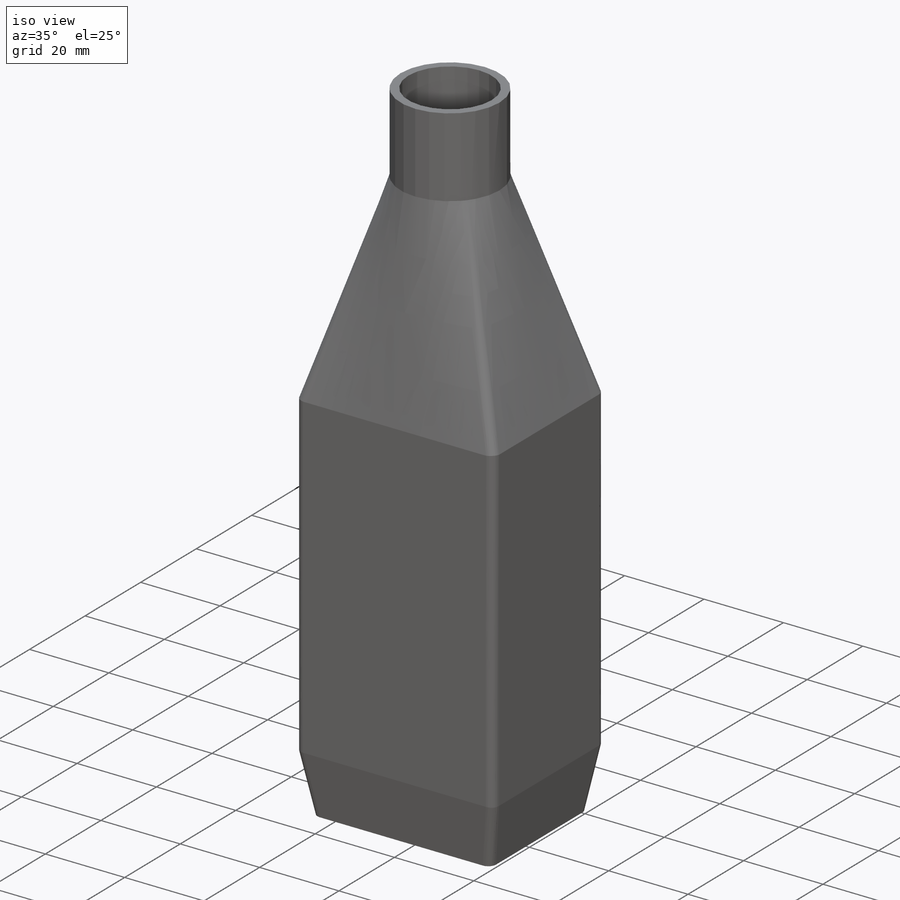
[diagram: iso view]
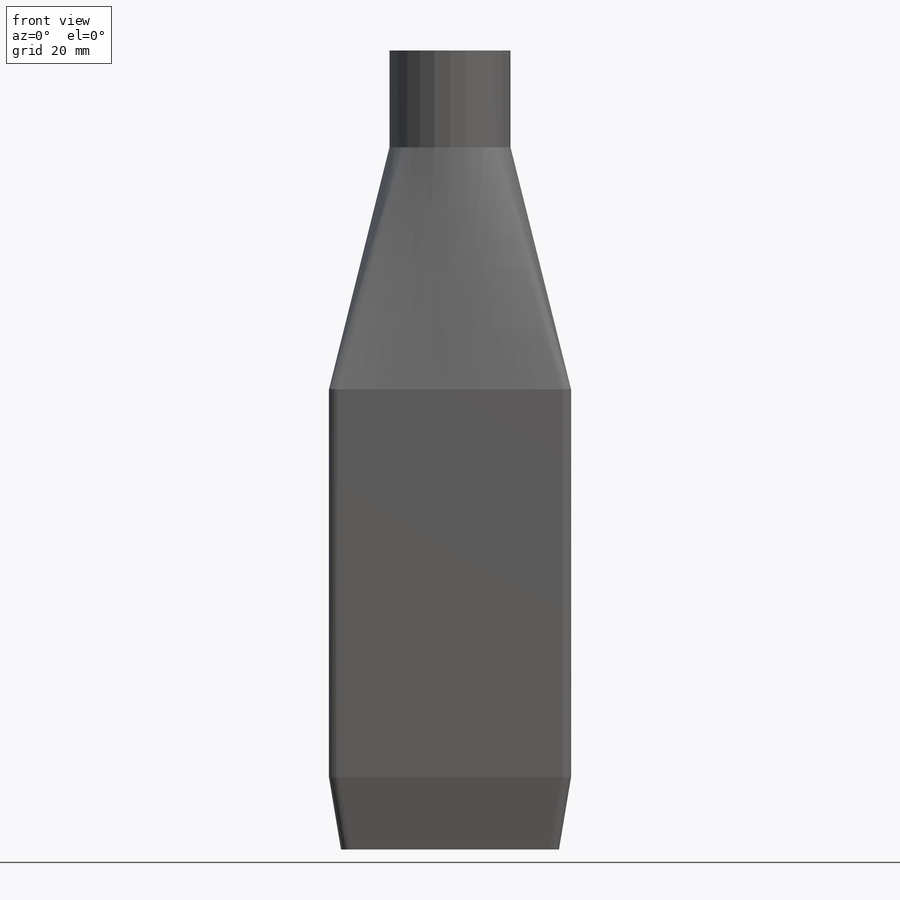
[diagram: front view]
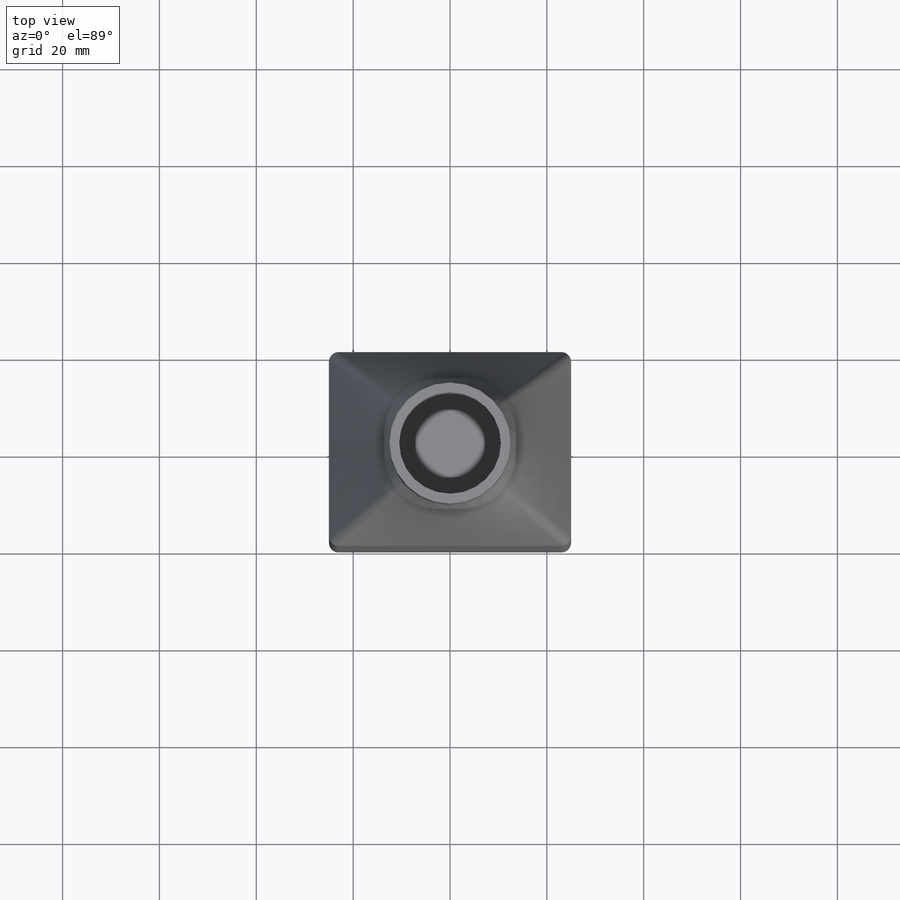
[diagram: top view]
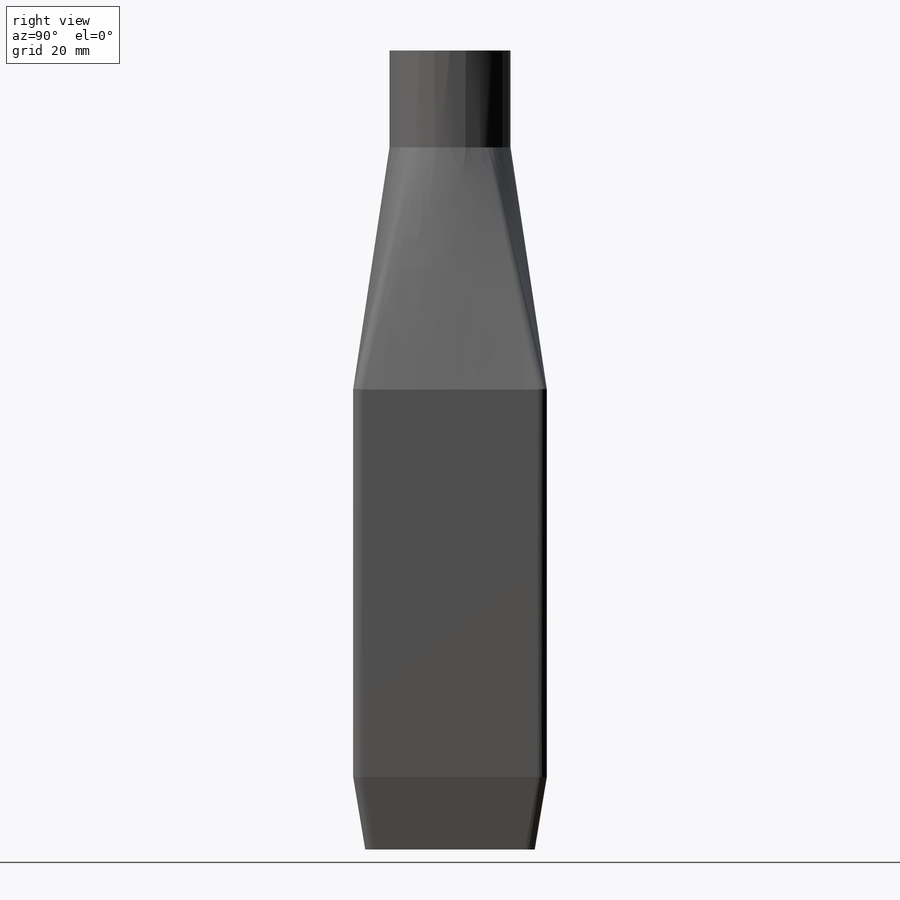
[diagram: right view]
SOLIDWORKS PART (.sldprt)
format: sldprt  version: not decoded by parser v0  size: 287,232 bytes
history: native  units: mm
features: sketch x5, plane x2, extrude x2, material x1, shell x1, fillet x1 (+12 scaffold rows collapsed)
feature tree (24):
  scaffold x12  (default folders/planes/origin — collapsed)
  material  "Material <not specified>"
  sketch  "Sketch1"  dims[c1.D1=~55.50285mm c1.D2=~68.697868mm c2.D1=50.0mm c2.D2=40.0mm]
  plane  "Plane1"  Offset=50mm
  sketch  "Sketch2"  dims[D1=25.0mm]
  sketch  "Sketch3"  dims[D1=0.0mm]
  extrude  "Boss-Extrude1"  Depth=20mm
  sketch  "Sketch4"  dims[D1=0.0mm]
  extrude  "Boss-Extrude2"  Depth=80mm
  shell  "Shell2"  Thickness=2mm
  plane  "Plane2"  Offset=15mm
  sketch  "Sketch6"  dims[c1.D1=~37.132623mm c1.D2=~41.016789mm c2.D1=45.0mm c2.D2=35.0mm]
  fillet  "Fillet2"  Radius=2mm
decode coverage: 9 of 9 modeling features carry decoded parameters
note: ~ marks probable driven/reference dimensions
note: suppression state not decoded; provenance and decode notes live in map.json
